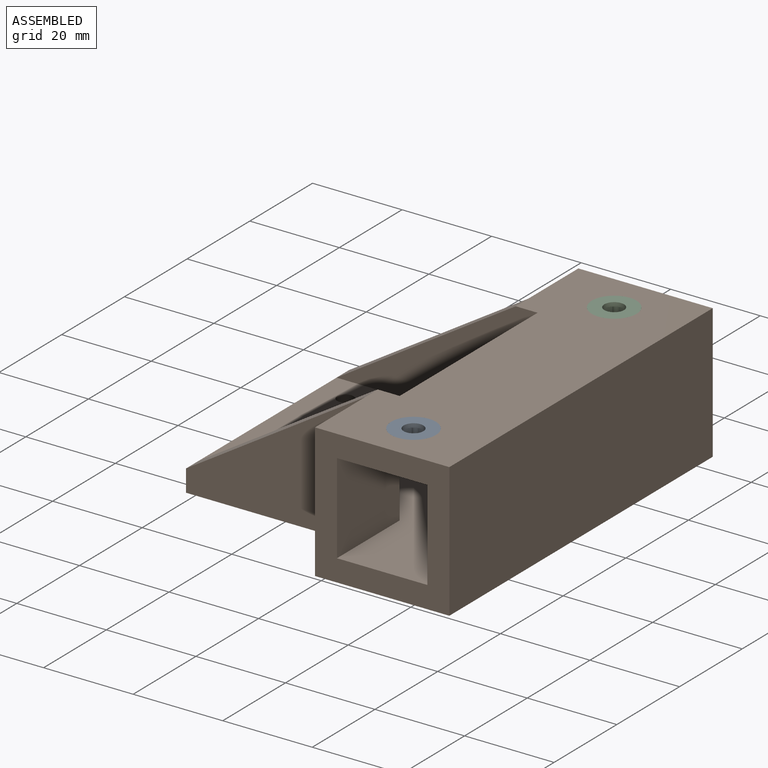
[diagram: assembled view]
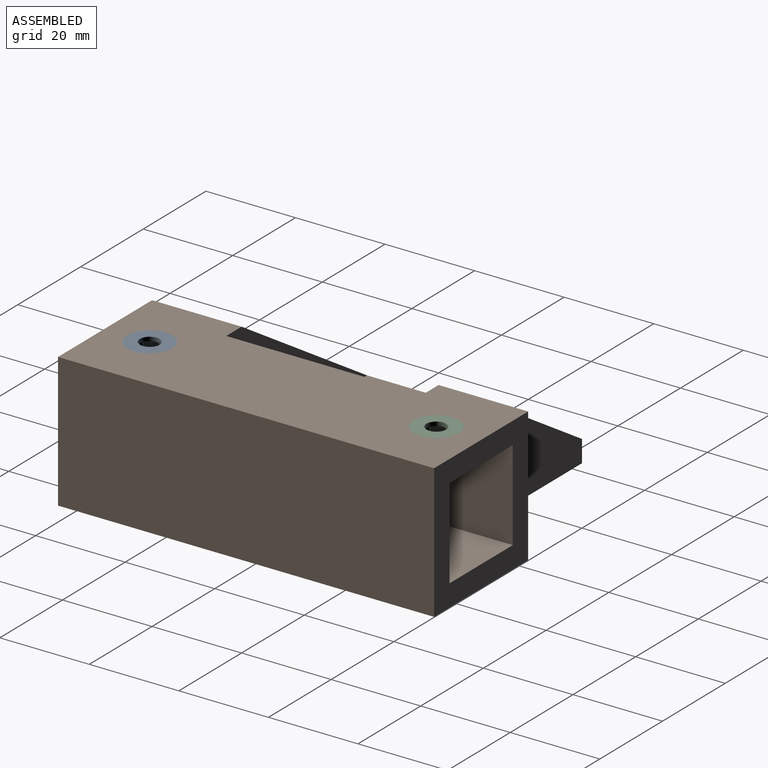
[diagram: assembled view, second angle]
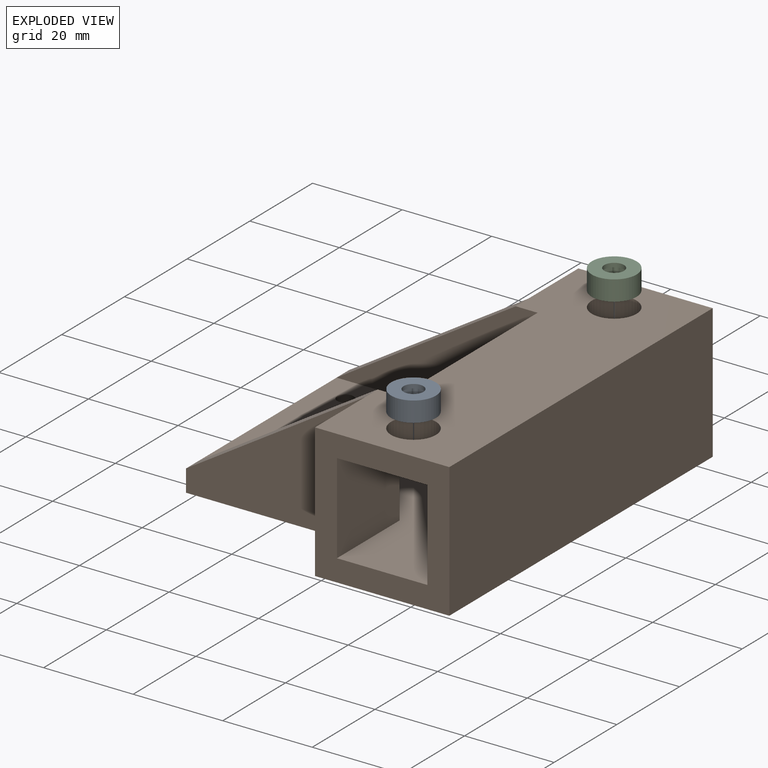
[diagram: exploded view]
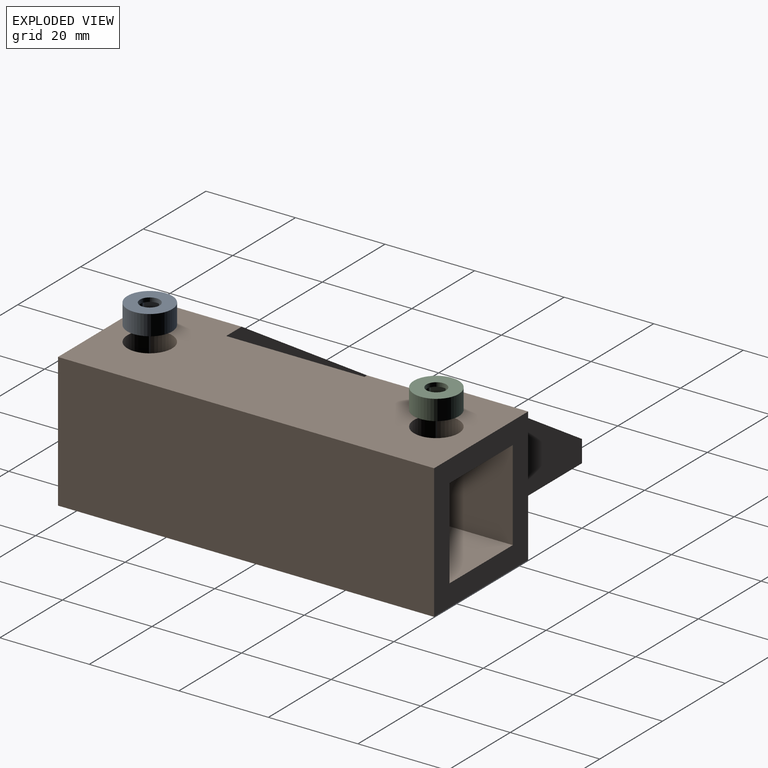
[diagram: exploded view, second angle]
ASSEMBLY  parts=3 mates=2
PART A: 29 faces, bbox 10x10x4.5 mm
  f0: plane 3.77x3.6mm, normal (0,-1,0), area 10.5mm2, adj f7,f8,f9,f10,f17,f18,f19,f26
  f1: plane 3.6x3.27mm, normal (-0.87,-0.5,0), area 10.5mm2, adj f7,f8,f9,f10,f14,f15,f16,f26
  f2: plane 3.6x3.27mm, normal (-0.87,0.5,0), area 10.5mm2, adj f7,f11,f12,f13,f14,f15,f16,f26
  f3: plane 3.77x3.6mm, normal (0,1,0), area 10.5mm2, adj f7,f11,f12,f13,f23,f24,f25,f26
  f4: plane 3.6x3.27mm, normal (0.87,0.5,0), area 10.5mm2, adj f7,f20,f21,f22,f23,f24,f25,f26
  f5: cylinder r=5mm len=10mm, axis (0,0,-1), area 141.4mm2, adj f7,f27
  f6: plane 3.6x3.27mm, normal (0.87,-0.5,0), area 10.5mm2, adj f7,f17,f18,f19,f20,f21,f22,f26
  f7: plane 10x10mm, normal (0,0,1), area 31.5mm2, adj f0,f1,f2,f3,f4,f5,f6,f9
  f8: cylinder r=0.75mm len=2.6mm, axis (0,0,-1), area 4.1mm2, adj f0,f1,f9,f10
  f9: cone r=0.25mm half-angle=45deg, axis (0,0,-1), area 0.7mm2, adj f0,f1,f7,f8
  f10: cone r=0.75mm half-angle=45deg, axis (0,0,1), area 0.7mm2, adj f0,f1,f8,f26
  f11: cylinder r=0.75mm len=2.6mm, axis (0,0,-1), area 4.1mm2, adj f2,f3,f12,f13
  f12: cone r=0.25mm half-angle=45deg, axis (0,0,-1), area 0.7mm2, adj f2,f3,f7,f11
  f13: cone r=0.75mm half-angle=45deg, axis (0,0,1), area 0.7mm2, adj f2,f3,f11,f26
  f14: cylinder r=0.75mm len=2.6mm, axis (0,0,-1), area 4.1mm2, adj f1,f2,f15,f16
  f15: cone r=0.25mm half-angle=45deg, axis (0,0,-1), area 0.7mm2, adj f1,f2,f7,f14
  f16: cone r=0.75mm half-angle=45deg, axis (0,0,1), area 0.7mm2, adj f1,f2,f14,f26
  f17: cone r=0.75mm half-angle=45deg, axis (0,0,1), area 0.7mm2, adj f0,f6,f19,f26
  f18: cone r=0.25mm half-angle=45deg, axis (0,0,-1), area 0.7mm2, adj f0,f6,f7,f19
  f19: cylinder r=0.75mm len=2.6mm, axis (0,0,-1), area 4.1mm2, adj f0,f6,f17,f18
  f20: cone r=0.75mm half-angle=45deg, axis (0,0,1), area 0.7mm2, adj f4,f6,f22,f26
  f21: cone r=0.25mm half-angle=45deg, axis (0,0,-1), area 0.7mm2, adj f4,f6,f7,f22
  f22: cylinder r=0.75mm len=2.6mm, axis (0,0,-1), area 4.1mm2, adj f4,f6,f20,f21
  f23: cylinder r=0.75mm len=2.6mm, axis (0,0,-1), area 4.1mm2, adj f3,f4,f24,f25
  f24: cone r=0.25mm half-angle=45deg, axis (0,0,-1), area 0.7mm2, adj f3,f4,f7,f23
  f25: cone r=0.75mm half-angle=45deg, axis (0,0,1), area 0.7mm2, adj f3,f4,f23,f26
  f26: plane 8.29x7.4mm, normal (0,0,1), area 31.8mm2, adj f0,f1,f2,f3,f4,f6,f10,f13
  f27: plane 10x10mm, normal (0,0,-1), area 63.3mm2, adj f5,f28
  f28: cylinder r=2.2mm len=4.4mm, axis (0,0,-1), area 12.4mm2, adj f26,f27
PART B: 27 faces, bbox 70x84x30 mm
  f0: plane 30x16mm, normal (-1,0,0), area 480mm2, adj f2,f4,f5,f17
  f1: plane 20.2x20mm, normal (1,0,0), area 404mm2, adj f4,f8,f10,f13
  f2: plane 84x30mm, normal (0,0,1), area 2147.3mm2, adj f0,f3,f4,f6,f7,f12,f13,f14
  f3: plane 30x30mm, normal (0,1,0), area 492mm2, adj f2,f5,f6,f7,f8,f9,f10,f11
  f4: plane 30x30mm, normal (0,-1,0), area 492mm2, adj f0,f1,f2,f5,f6,f8,f9,f10
  f5: plane 84x70mm, normal (0,0,-1), area 4158.1mm2, adj f0,f3,f4,f6,f7,f17,f18,f19
  f6: plane 84x30mm, normal (1,0,0), area 2520mm2, adj f2,f3,f4,f5
  f7: plane 30x16mm, normal (-1,0,0), area 480mm2, adj f2,f3,f5,f18
  f8: plane 84x20.2mm, normal (0,0,-1), area 1539.7mm2, adj f1,f3,f4,f9,f11,f12,f15,f16
  f9: plane 84x20.2mm, normal (-1,0,0), area 1696.8mm2, adj f3,f4,f8,f10
  f10: plane 84x65.1mm, normal (0,0,1), area 3230.5mm2, adj f1,f3,f4,f9,f11,f13,f14,f19
  f11: plane 20.2x20mm, normal (1,0,0), area 404mm2, adj f3,f8,f10,f14
  f12: plane 44x4.9mm, normal (-1,0,0), area 215.6mm2, adj f2,f8,f13,f14
  f13: plane 44.9x25.1mm, normal (0,1,0), area 625mm2, adj f1,f2,f10,f12,f25
  f14: plane 44.9x25.1mm, normal (0,-1,0), area 625mm2, adj f2,f10,f11,f12,f26
  f15: cylinder r=5mm len=10mm, axis (0,0,1), area 153.9mm2, adj f2,f8
  f16: cylinder r=5mm len=10mm, axis (0,0,1), area 153.9mm2, adj f2,f8
  f17: plane 40x30mm, normal (0,-1,0), area 698mm2, adj f0,f5,f19,f25
  f18: plane 40x30mm, normal (0,1,0), area 698mm2, adj f5,f7,f19,f26
  f19: plane 52x4.9mm, normal (-1,0,0), area 254.8mm2, adj f5,f10,f17,f18,f25,f26
  f20: cylinder r=11.3mm len=22.6mm, axis (0,0,-1), area 347.9mm2, adj f5,f10
  f21: cylinder r=1.8mm len=4.9mm, axis (0,0,-1), area 55.4mm2, adj f5,f10
  f22: cylinder r=1.8mm len=4.9mm, axis (0,0,-1), area 55.4mm2, adj f5,f10
  f23: cylinder r=1.8mm len=4.9mm, axis (0,0,-1), area 55.4mm2, adj f5,f10
  f24: cylinder r=1.8mm len=4.9mm, axis (0,0,-1), area 55.4mm2, adj f5,f10
  f25: plane 40x25.1mm, normal (-0.53,0,0.85), area 188.9mm2, adj f2,f13,f17,f19
  f26: plane 40x25.1mm, normal (-0.53,0,0.85), area 188.9mm2, adj f2,f14,f18,f19
PART C: same geometry as A
PLACE A rot(axis=(1,0,0),180deg) t=(15,-32,14.1)mm
PLACE B at identity
PLACE C rot(axis=(1,0,0),180deg) t=(15,32,14.1)mm
MATE fastened A.f28 <-> B.f16  axis (0,0,1) through (15,-32,15)mm
MATE fastened C.f28 <-> B.f15  axis (0,0,1) through (15,32,15)mm
